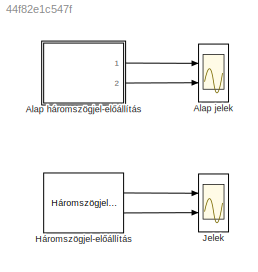
MODEL slx_44f82e1c547f
KIND model
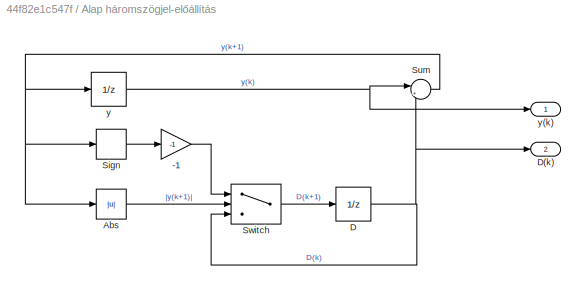
BLOCK [SubSystem] Alap háromszögjel-előállítás
  FunctionWithSeparateData = off
  MaskHideContents = off
  MinAlgLoopOccurrences = off
  Opaque = off
  Ports = [0, 2]
  PropExecContextOutsideSubsystem = off
  RTWSystemCode = Auto
  RequestExecContextInheritance = off
BLOCK [Gain] Alap háromszögjel-előállítás/-1
  Gain = -1
  OutDataTypeStr = Inherit: Inherit via internal rule
  ParamDataTypeStr = Inherit: Inherit via internal rule
  SaturateOnIntegerOverflow = off
BLOCK [Abs] Alap háromszögjel-előállítás/Abs
  SaturateOnIntegerOverflow = off
BLOCK [UnitDelay] Alap háromszögjel-előállítás/D
  InitialCondition = -1
  InputProcessing = Elements as channels (sample based)
  SampleTime = T_S
BLOCK [Outport] Alap háromszögjel-előállítás/D(k)
  IconDisplay = Port number
  Port = 2
BLOCK [Signum] Alap háromszögjel-előállítás/Sign
BLOCK [Sum] Alap háromszögjel-előállítás/Sum
  IconShape = round
  InputSameDT = off
  Inputs = |++
  OutDataTypeStr = Inherit: Inherit via internal rule
  Ports = [2, 1]
  SaturateOnIntegerOverflow = off
BLOCK [Switch] Alap háromszögjel-előállítás/Switch
  InputSameDT = off
  SaturateOnIntegerOverflow = off
  Threshold = N
BLOCK [UnitDelay] Alap háromszögjel-előállítás/y
  InitialCondition = N
  InputProcessing = Elements as channels (sample based)
  SampleTime = T_S
BLOCK [Outport] Alap háromszögjel-előállítás/y(k)
  IconDisplay = Port number
BLOCK [Scope] Alap jelek
  DataFormat = StructureWithTime
  Floating = off
  LegendLocations = 0.72336      0.7267     0.25941    0.023589\n0.62629     0.39058      0.2622    0.023589
  LimitDataPoints = off
  NumInputPorts = 2
  Ports = [2]
  SampleTime = 0
  ShowLegends = on
  YMax = 5~5
  YMin = -5~-5
BLOCK [Reference] Háromszögjel-előállítás  REF=RI_MK/Háromszögjel-előállítás
  A = 2
  Ports = [0, 2]
  SourceBlock = RI_MK/Háromszögjel-előállítás
  SourceType = Háromszögjel-előállítás
  T_S = 50e-3
  f = 1
BLOCK [Scope] Jelek
  DataFormat = StructureWithTime
  Floating = off
  LegendLocations = 0.71106     0.91762     0.24686    0.029131\n0.69572     0.45201      0.2622    0.029131
  LimitDataPoints = off
  NumInputPorts = 2
  Ports = [2]
  SampleTime = 0
  SaveName = ScopeData1
  ShowLegends = on
  YMax = 5~5
  YMin = -5~-5
LINE Alap háromszögjel-előállítás/-1:1 -> Alap háromszögjel-előállítás/Switch:1
LINE Alap háromszögjel-előállítás/Abs:1 -> Alap háromszögjel-előállítás/Switch:2
NET Alap háromszögjel-előállítás/D:1 -> Alap háromszögjel-előállítás/D(k):1, Alap háromszögjel-előállítás/Sum:2, Alap háromszögjel-előállítás/Switch:3
LINE Alap háromszögjel-előállítás/Sign:1 -> Alap háromszögjel-előállítás/-1:1
NET Alap háromszögjel-előállítás/Sum:1 -> Alap háromszögjel-előállítás/Abs:1, Alap háromszögjel-előállítás/Sign:1, Alap háromszögjel-előállítás/y:1
LINE Alap háromszögjel-előállítás/Switch:1 -> Alap háromszögjel-előállítás/D:1
NET Alap háromszögjel-előállítás/y:1 -> Alap háromszögjel-előállítás/Sum:1, Alap háromszögjel-előállítás/y(k):1
LINE Alap háromszögjel-előállítás:1 -> Alap jelek:1
LINE Alap háromszögjel-előállítás:2 -> Alap jelek:2
LINE Háromszögjel-előállítás:1 -> Jelek:1
LINE Háromszögjel-előállítás:2 -> Jelek:2
note: NET lines group one-source signal fan-out (src -> all destinations, sorted); 1:1 wires keep LINE
